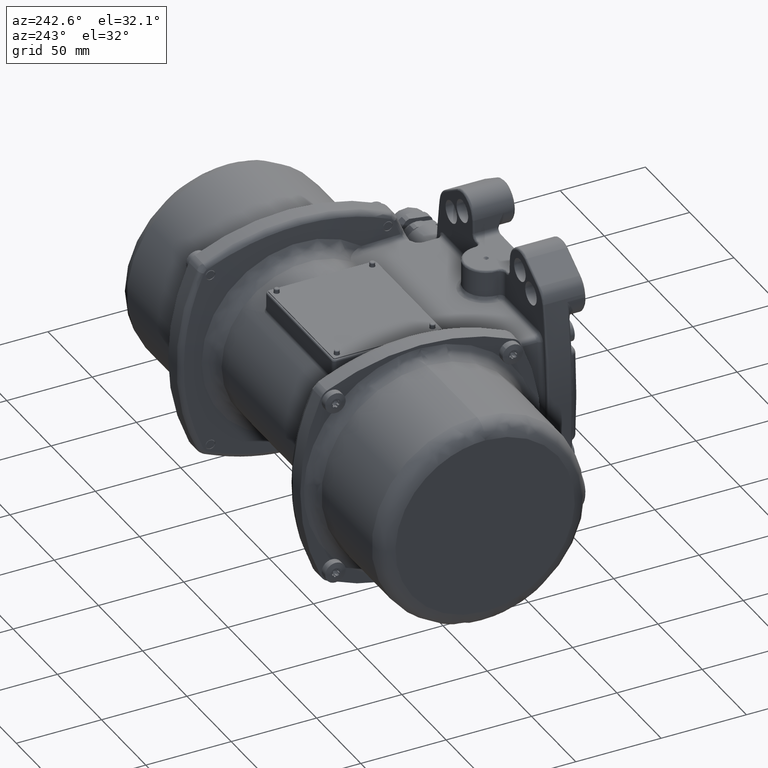
[diagram: clean part render]
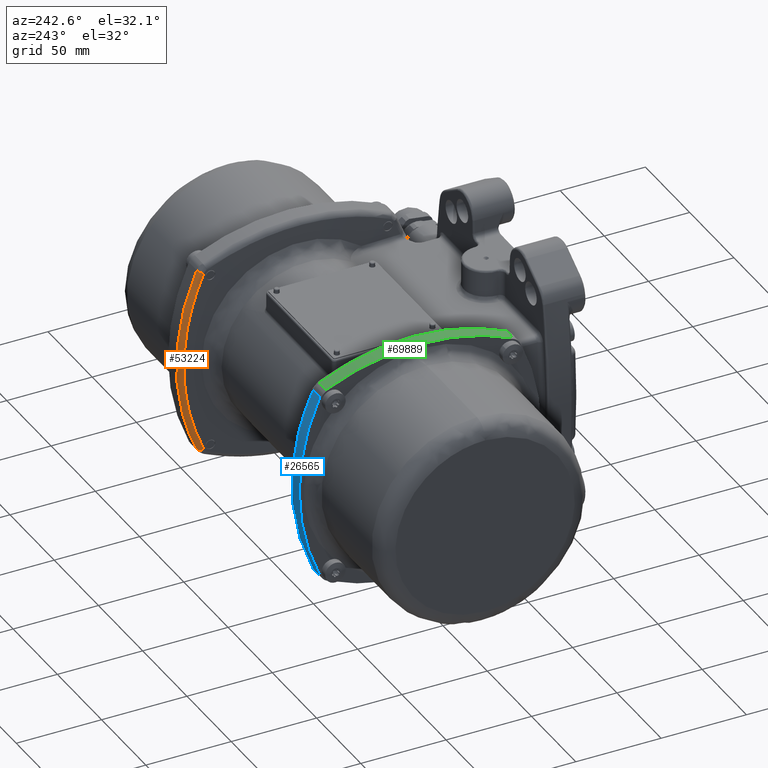
[diagram: same view with three faces highlighted in distinct colors, each labeled with its STEP entity id]
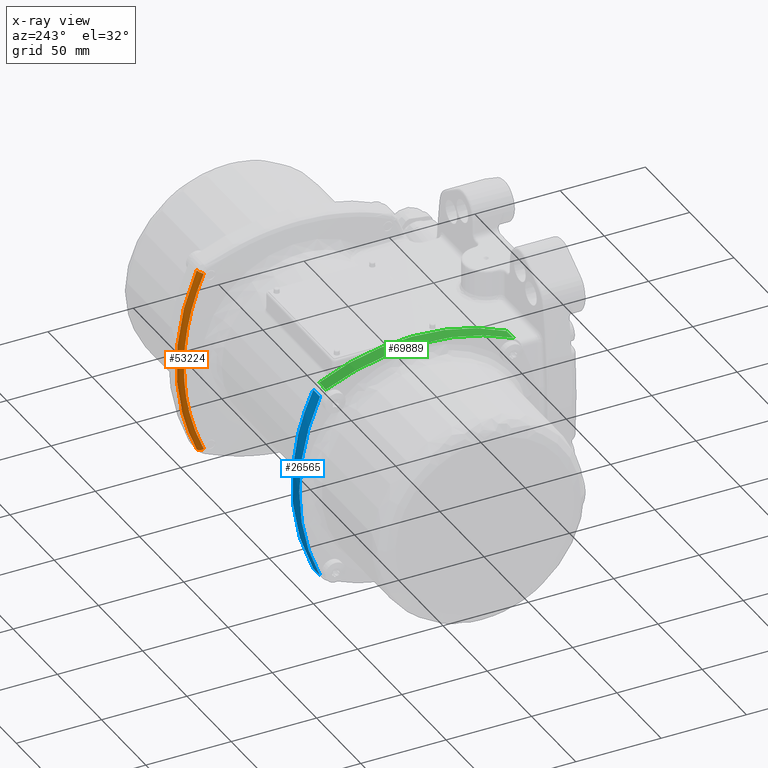
[diagram: x-ray of the same camera — body ghosted, the three highlighted faces saturated]
A machine part, auxiliary view with three faces highlighted in distinct colors.
The next image is the same camera in x-ray (body ghosted, the three faces saturated) — at least one of them is partly hidden behind the body in this view.
Their STEP definitions:

[orange] entity #53224 — the highlighted face is a freeform B-spline surface patch.
#507 = CARTESIAN_POINT ( 'NONE',  ( 65.44175855840559600, 68.37071234248568900, 23.55196588437800300 ) ) ;
#602 = CARTESIAN_POINT ( 'NONE',  ( 62.47540910049200100, 64.90561184000240800, -26.32266884053135000 ) ) ;
#1572 = CARTESIAN_POINT ( 'NONE',  ( 62.35123950651122000, 67.65188437586343200, 1.175435339197090000 ) ) ;
#1752 =( BOUNDED_SURFACE ( )  B_SPLINE_SURFACE ( 3, 2, ( 
 ( #25414, #111424, #7282 ),
 ( #63934, #4982, #82045 ),
 ( #88780, #54944, #95553 ),
 ( #118235, #97856, #43579 ),
 ( #109094, #138528, #106877 ),
 ( #16311, #57189, #124984 ),
 ( #507, #73021, #136292 ),
 ( #104671, #32228, #115996 ),
 ( #79795, #48049, #75262 ),
 ( #131741, #70701, #14062 ),
 ( #50377, #84238, #34469 ),
 ( #129538, #23105, #122771 ),
 ( #66160, #134067, #86551 ),
 ( #102350, #41254, #113676 ),
 ( #52648, #116102, #41348 ),
 ( #36888, #59521, #73116 ),
 ( #95651, #125090, #50471 ),
 ( #39135, #131836, #91169 ),
 ( #138621, #66250, #9600 ),
 ( #113768, #104766, #86649 ),
 ( #70795, #127312, #602 ),
 ( #55047, #136381, #25503 ),
 ( #77565, #18716, #97957 ),
 ( #111513, #43677, #88873 ),
 ( #11922, #45903, #11824 ),
 ( #122866, #27770, #61818 ) ),
 .UNSPECIFIED., .F., .F., .F. ) 
 B_SPLINE_SURFACE_WITH_KNOTS ( ( 4, 2, 2, 2, 2, 2, 2, 2, 2, 2, 2, 2, 4 ),
 ( 3, 3 ),
 ( -6.938893903907229900E-018, 0.01379262400805733900, 0.02758524801611470000, 0.03448156002014335400, 0.03792971602215770100, 0.04137787202417200100, 0.05517049603222939900, 0.06896312004028670700, 0.07585943204431540300, 0.07930758804632970200, 0.08275574404834400200, 0.09654836805640139300, 0.1103409920644586000 ),
 ( 0.0000000000000000000, 1.000000000000000000 ),
 .UNSPECIFIED. ) 
 GEOMETRIC_REPRESENTATION_ITEM ( )  RATIONAL_B_SPLINE_SURFACE ( (
 ( 1.000000000000000000, 0.7243922550684770400, 1.000000000000000000),
 ( 1.000000000000000000, 0.7245114531861609500, 1.000000000000000000),
 ( 1.000000000000000000, 0.7246327023817900100, 1.000000000000000000),
 ( 1.000000000000000000, 0.7248633070898790100, 1.000000000000000000),
 ( 1.000000000000000000, 0.7249726450147769800, 1.000000000000000000),
 ( 1.000000000000000000, 0.7251135887130870600, 1.000000000000000000),
 ( 1.000000000000000000, 0.7251567078725650300, 1.000000000000000000),
 ( 1.000000000000000000, 0.7252138234141319900, 1.000000000000000000),
 ( 1.000000000000000000, 0.7252316022405330700, 1.000000000000000000),
 ( 1.000000000000000000, 0.7252643640193930900, 1.000000000000000000),
 ( 1.000000000000000000, 0.7252793427281809500, 1.000000000000000000),
 ( 1.000000000000000000, 0.7253462632342520000, 1.000000000000000000),
 ( 1.000000000000000000, 0.7253742834435059600, 1.000000000000000000),
 ( 1.000000000000000000, 0.7253744581643599700, 1.000000000000000000),
 ( 1.000000000000000000, 0.7253466274368789400, 1.000000000000000000),
 ( 1.000000000000000000, 0.7252676218558329300, 1.000000000000000000),
 ( 1.000000000000000000, 0.7252351620701080700, 1.000000000000000000),
 ( 1.000000000000000000, 0.7251785084503981100, 1.000000000000000000),
 ( 1.000000000000000000, 0.7251583003771560100, 1.000000000000000000),
 ( 1.000000000000000000, 0.7251154795694559900, 1.000000000000000000),
 ( 1.000000000000000000, 0.7250928370710980600, 1.000000000000000000),
 ( 1.000000000000000000, 0.7249746617542759400, 1.000000000000000000),
 ( 1.000000000000000000, 0.7248646104742210200, 1.000000000000000000),
 ( 1.000000000000000000, 0.7246329991026849700, 1.000000000000000000),
 ( 1.000000000000000000, 0.7245114464358579600, 1.000000000000000000),
 ( 1.000000000000000000, 0.7243922550684750400, 1.000000000000000000) ) ) 
 REPRESENTATION_ITEM ( '' )  SURFACE ( )  );
#2911 = ORIENTED_EDGE ( 'NONE', *, *, #135402, .T. ) ;
#3932 = CARTESIAN_POINT ( 'NONE',  ( 62.48582423466920200, 64.67058392429707700, -27.38432010587094500 ) ) ;
#4982 = CARTESIAN_POINT ( 'NONE',  ( 62.92637025227075800, 60.31650563471004700, 50.66267622753727600 ) ) ;
#5331 = CARTESIAN_POINT ( 'NONE',  ( 62.41203955454130200, 66.31868662546205000, 18.42711283664303700 ) ) ;
#7055 = VERTEX_POINT ( 'NONE', #49802 ) ;
#7282 = CARTESIAN_POINT ( 'NONE',  ( 62.86347865239088900, 55.71609045198440700, 53.77719982089649900 ) ) ;
#7838 = B_SPLINE_CURVE_WITH_KNOTS ( 'NONE', 3,
 ( #30658, #89543, #118911, #21549, #39700, #130214, #87231, #42013, #60188, #12497, #53420, #71485, #10268, #44258, #105336, #37467, #123440, #134731, #26103, #57871, #62382, #114452, #94002, #98529, #85021, #23871 ),
 .UNSPECIFIED., .F., .F.,
 ( 4, 2, 2, 2, 2, 2, 2, 2, 2, 2, 2, 2, 4 ),
 ( 0.0000000000000000000, 0.1250000000000001700, 0.2500000000000004400, 0.3125000000000003900, 0.3437500000000005600, 0.3750000000000002200, 0.5000000000000008900, 0.6250000000000007800, 0.6875000000000011100, 0.7187500000000007800, 0.7500000000000004400, 0.8750000000000010000, 1.000000000000000000 ),
 .UNSPECIFIED. ) ;
#8340 = CARTESIAN_POINT ( 'NONE',  ( 62.46748001718588500, 65.08353406846276800, -25.45299657527857200 ) ) ;
#9568 = CARTESIAN_POINT ( 'NONE',  ( 62.48810728627344000, 64.61905932276084700, 27.61672199767612700 ) ) ;
#9600 = CARTESIAN_POINT ( 'NONE',  ( 62.44523304638850200, 65.58165817455399300, -22.89882350383505000 ) ) ;
#10268 = CARTESIAN_POINT ( 'NONE',  ( 65.34693035835859100, 70.49918772664669600, 4.721950623626369700 ) ) ;
#10643 = CARTESIAN_POINT ( 'NONE',  ( 62.38374816282325200, 66.94187486668391800, -13.46361574568767900 ) ) ;
#10783 = EDGE_CURVE ( 'NONE', #7055, #54323, #69546, .T. ) ;
#11824 = CARTESIAN_POINT ( 'NONE',  ( 62.78414685227539800, 57.68834390161169500, -49.55415236872429600 ) ) ;
#11922 = CARTESIAN_POINT ( 'NONE',  ( 65.78003541066131300, 60.33458158999379600, -50.61968942760020000 ) ) ;
#12497 = CARTESIAN_POINT ( 'NONE',  ( 65.39388363829060300, 69.45204342327809900, 16.51618227147285000 ) ) ;
#14062 = CARTESIAN_POINT ( 'NONE',  ( 62.39799503401939500, 66.62882520626161000, 16.17208352649490200 ) ) ;
#14512 = EDGE_CURVE ( 'NONE', #7055, #79807, #34604, .T. ) ;
#16311 = CARTESIAN_POINT ( 'NONE',  ( 65.46147877221790200, 67.92144646924110400, 25.87148223928279800 ) ) ;
#17458 = CARTESIAN_POINT ( 'NONE',  ( 62.70784905415251100, 59.52346832141901000, -44.96808300273809800 ) ) ;
#18255 = VERTEX_POINT ( 'NONE', #85818 ) ;
#18716 = CARTESIAN_POINT ( 'NONE',  ( 62.73081716011853400, 65.12658602574707300, -37.29123150517413900 ) ) ;
#21549 = CARTESIAN_POINT ( 'NONE',  ( 65.58239318808308800, 65.12053494636819600, 37.30833489235155300 ) ) ;
#22047 = CARTESIAN_POINT ( 'NONE',  ( 62.48619081759670700, 64.66231288568766900, -27.42176365622128000 ) ) ;
#23105 = CARTESIAN_POINT ( 'NONE',  ( 62.51137595868496500, 70.24376998184158100, 9.441984661610350200 ) ) ;
#23166 = CARTESIAN_POINT ( 'NONE',  ( 62.54623584251920200, 63.29692059050433500, 33.01721344424561300 ) ) ;
#23871 = CARTESIAN_POINT ( 'NONE',  ( 65.85936725665460800, 58.32209224431439800, -54.93591338252520000 ) ) ;
#24149 = CARTESIAN_POINT ( 'NONE',  ( 62.37415032092848600, 67.15257162754240000, 11.54593760213000100 ) ) ;
#25414 = CARTESIAN_POINT ( 'NONE',  ( 65.85936725665460800, 58.32209224431390000, 54.93591338252570500 ) ) ;
#25503 = CARTESIAN_POINT ( 'NONE',  ( 62.53119141571410500, 63.64683490313679900, -32.00917981858655300 ) ) ;
#26103 = CARTESIAN_POINT ( 'NONE',  ( 65.44112165064859700, 68.38459152220970300, -23.38674670910569700 ) ) ;
#27734 = CARTESIAN_POINT ( 'NONE',  ( 62.44536145047543800, 65.57916874102070900, 22.99940754444227800 ) ) ;
#27770 = CARTESIAN_POINT ( 'NONE',  ( 63.00474880506701700, 58.30152255820480900, -54.98002957728771600 ) ) ;
#30658 = CARTESIAN_POINT ( 'NONE',  ( 65.85936725665460800, 58.32209224431390000, 54.93591338252570500 ) ) ;
#32228 = CARTESIAN_POINT ( 'NONE',  ( 62.56799253229787200, 68.94763723386927300, 20.06516838201151000 ) ) ;
#32247 = AXIS2_PLACEMENT_3D ( 'NONE', #108306, #105990, #42682 ) ;
#32295 = CARTESIAN_POINT ( 'NONE',  ( 62.61461457495173700, 61.71729858067147500, 38.46195418074435000 ) ) ;
#34469 = CARTESIAN_POINT ( 'NONE',  ( 62.39148564578329800, 66.77202363034769000, 15.01406672763229900 ) ) ;
#34604 = B_SPLINE_CURVE_WITH_KNOTS ( 'NONE', 3,
 ( #114037, #100167, #125351, #32295, #57248, #23166, #120527, #64298, #77832, #53011, #91333, #131801, #70761, #82099, #9568, #127570, #27734, #106936, #5331, #45867, #125051, #84599, #64001, #59780, #130602, #24149, #78533, #96621, #35510, #114729, #121617, #1572, #135101, #74080, #60562, #80844, #105707, #98914, #67298, #108037, #37858, #139673, #10643, #114830, #65094, #49211, #69618, #117068, #8340, #53806, #71870, #128363, #85412, #3932, #22047, #101290, #119396, #17458, #58354, #137461 ),
 .UNSPECIFIED., .F., .F.,
 ( 4, 2, 2, 2, 1, 1, 1, 1, 2, 2, 2, 2, 1, 1, 2, 2, 2, 2, 1, 2, 2, 2, 2, 1, 2, 2, 2, 2, 1, 1, 1, 1, 2, 2, 2, 4 ),
 ( 0.0000000000000000000, 0.1250000000000008900, 0.1875000000000013300, 0.2187500000000014400, 0.2343750000000015000, 0.2421875000000016100, 0.2460937500000016700, 0.2480468750000016900, 0.2490234375000016900, 0.2500000000000016700, 0.3125000000000005600, 0.3437499999999999400, 0.3593749999999996700, 0.3671874999999994400, 0.3710937499999993300, 0.3749999999999992800, 0.4374999999999982800, 0.4687499999999978400, 0.4843749999999976100, 0.4921874999999975000, 0.4999999999999973900, 0.5624999999999964500, 0.5937499999999960000, 0.6093749999999957800, 0.6171874999999956700, 0.6249999999999956700, 0.6874999999999948900, 0.7187499999999944500, 0.7343749999999942300, 0.7421874999999941200, 0.7460937499999942300, 0.7480468749999942300, 0.7490234374999943400, 0.7499999999999944500, 0.8749999999999972200, 1.000000000000000000 ),
 .UNSPECIFIED. ) ;
#35510 = CARTESIAN_POINT ( 'NONE',  ( 62.35464402321186800, 67.57760446793726300, 4.633199066285123500 ) ) ;
#36888 = CARTESIAN_POINT ( 'NONE',  ( 65.39242825451590600, 69.48495579952890500, -16.38344724267105300 ) ) ;
#37467 = CARTESIAN_POINT ( 'NONE',  ( 65.39242825451590600, 69.48495579952890500, -16.38344724267105300 ) ) ;
#37858 = CARTESIAN_POINT ( 'NONE',  ( 62.37968462348385400, 67.03095387561506900, -12.59972647280534700 ) ) ;
#39135 = CARTESIAN_POINT ( 'NONE',  ( 65.43197451404850500, 68.59233224260809400, -22.22054677462309900 ) ) ;
#39700 = CARTESIAN_POINT ( 'NONE',  ( 65.52808104847129300, 66.38860892972741100, 32.77640303668150100 ) ) ;
#41254 = CARTESIAN_POINT ( 'NONE',  ( 62.49996420031501300, 70.50081004382083400, -4.681849936275873400 ) ) ;
#41348 = CARTESIAN_POINT ( 'NONE',  ( 62.36245356703089700, 67.40927359465230500, -9.171183281642559100 ) ) ;
#42013 = CARTESIAN_POINT ( 'NONE',  ( 65.41614663466489800, 68.95070104695000200, 20.04547189630324800 ) ) ;
#42682 = DIRECTION ( 'NONE',  ( 0.0000000000000000000, 0.9063237864947203400, 0.4225839490963569900 ) ) ;
#43579 = CARTESIAN_POINT ( 'NONE',  ( 62.58650458382479800, 62.38033461129539600, 36.52699195756334700 ) ) ;
#43677 = CARTESIAN_POINT ( 'NONE',  ( 62.85547543297595000, 62.08291516092772600, -46.26047473324340600 ) ) ;
#44258 = CARTESIAN_POINT ( 'NONE',  ( 65.34685721636789400, 70.50080840817980700, -4.677118824623470100 ) ) ;
#44472 = CARTESIAN_POINT ( 'NONE',  ( 65.85936725665460800, 55.60312088483020400, -53.66816153523620200 ) ) ;
#45867 = CARTESIAN_POINT ( 'NONE',  ( 62.40137547581905200, 66.55411601489390700, 16.71303936227016300 ) ) ;
#45903 = CARTESIAN_POINT ( 'NONE',  ( 62.92636985653079800, 60.31651581131061600, -50.66265442347170000 ) ) ;
#48049 = CARTESIAN_POINT ( 'NONE',  ( 62.56025626609744700, 69.12565091235957500, 18.89070760563517100 ) ) ;
#49211 = CARTESIAN_POINT ( 'NONE',  ( 62.43593833744495900, 65.78851497887367800, -21.73876768186151800 ) ) ;
#49802 = CARTESIAN_POINT ( 'NONE',  ( 62.86347865239088900, 55.71609045198440700, 53.77719982089649900 ) ) ;
#50377 = CARTESIAN_POINT ( 'NONE',  ( 65.38737425004690400, 69.59800416113000700, 15.33346264919550000 ) ) ;
#50471 = CARTESIAN_POINT ( 'NONE',  ( 62.41070742973079900, 66.34902937937829400, -18.32977102511895100 ) ) ;
#52648 = CARTESIAN_POINT ( 'NONE',  ( 65.35834217131079500, 70.24753145441829400, -9.366042180342551800 ) ) ;
#53011 = CARTESIAN_POINT ( 'NONE',  ( 62.49725786927030000, 64.41226174123626400, 28.53185742205819200 ) ) ;
#53224 = ADVANCED_FACE ( 'NONE', ( #120471 ), #1752, .T. ) ;
#53420 = CARTESIAN_POINT ( 'NONE',  ( 65.38737425004690400, 69.59800416113000700, 15.33346264919550000 ) ) ;
#53806 = CARTESIAN_POINT ( 'NONE',  ( 62.47685049019350600, 64.87282604819212400, -26.45419285478861900 ) ) ;
#54323 = VERTEX_POINT ( 'NONE', #129348 ) ;
#54944 = CARTESIAN_POINT ( 'NONE',  ( 62.85566004509389900, 62.07824381080781300, 46.27053550570661100 ) ) ;
#55047 = CARTESIAN_POINT ( 'NONE',  ( 65.52708001997970700, 66.41198520661988900, -32.69282714195784900 ) ) ;
#57185 = ORIENTED_EDGE ( 'NONE', *, *, #10783, .T. ) ;
#57189 = CARTESIAN_POINT ( 'NONE',  ( 62.61253842130511800, 67.91639870835381000, 25.89651889580578000 ) ) ;
#57248 = CARTESIAN_POINT ( 'NONE',  ( 62.58577850542798900, 62.38703760979775800, 36.28253258894685000 ) ) ;
#57871 = CARTESIAN_POINT ( 'NONE',  ( 65.46077614148040900, 67.93627696724549000, -25.71777562632059900 ) ) ;
#57903 = EDGE_CURVE ( 'NONE', #79807, #18255, #96172, .T. ) ;
#58354 = CARTESIAN_POINT ( 'NONE',  ( 62.78066742849065900, 57.77484522328256100, -49.36893317886375600 ) ) ;
#59521 = CARTESIAN_POINT ( 'NONE',  ( 62.54469686389775500, 69.48292415159993100, -16.39978476935939600 ) ) ;
#59780 = CARTESIAN_POINT ( 'NONE',  ( 62.38713467197824500, 66.86753269044372400, 14.14157402059558200 ) ) ;
#60188 = CARTESIAN_POINT ( 'NONE',  ( 65.40827078909620700, 69.12836999818279100, 18.87210140588730300 ) ) ;
#60562 = CARTESIAN_POINT ( 'NONE',  ( 62.35098687724217800, 67.65740068376602800, -2.275178718472781600 ) ) ;
#61818 = CARTESIAN_POINT ( 'NONE',  ( 62.86347865239088900, 55.71609045198479700, -53.77719982089610100 ) ) ;
#62382 = CARTESIAN_POINT ( 'NONE',  ( 65.47129770475528700, 67.69537544681298900, -26.88404778432109800 ) ) ;
#62580 = DIRECTION ( 'NONE',  ( 0.01704917898812790800, -0.4225225274426571700, -0.9061920543126055200 ) ) ;
#63934 = CARTESIAN_POINT ( 'NONE',  ( 65.78003581177559100, 60.33457141604100100, 50.61971124786870000 ) ) ;
#64001 = CARTESIAN_POINT ( 'NONE',  ( 62.38860674638974800, 66.83519386807846300, 14.42734339826272800 ) ) ;
#64298 = CARTESIAN_POINT ( 'NONE',  ( 62.51575791767974300, 63.99257515789039300, 30.29831015469347100 ) ) ;
#65094 = CARTESIAN_POINT ( 'NONE',  ( 62.41059790473654100, 66.35122969476796600, -18.31376115233696200 ) ) ;
#66160 = CARTESIAN_POINT ( 'NONE',  ( 65.34693035835859100, 70.49918772664669600, 4.721950623626369700 ) ) ;
#66250 = CARTESIAN_POINT ( 'NONE',  ( 62.59253145011653200, 68.38044573408028300, -23.40947003486242700 ) ) ;
#67298 = CARTESIAN_POINT ( 'NONE',  ( 62.37233599604862600, 67.19174343706059500, -10.87708696992641500 ) ) ;
#69546 = CIRCLE ( 'NONE', #32247, 2.999999999999996900 ) ;
#69618 = CARTESIAN_POINT ( 'NONE',  ( 62.44508124099573400, 65.58487876032907600, -22.88090495808830800 ) ) ;
#70701 = CARTESIAN_POINT ( 'NONE',  ( 62.54612641158311700, 69.44995417773904500, 16.53257438068180500 ) ) ;
#70761 = CARTESIAN_POINT ( 'NONE',  ( 62.48909563164338000, 64.59674412689838600, 27.71673787536393300 ) ) ;
#70795 = CARTESIAN_POINT ( 'NONE',  ( 65.47129770475528700, 67.69537544681298900, -26.88404778432109800 ) ) ;
#71485 = CARTESIAN_POINT ( 'NONE',  ( 65.35848858103709300, 70.24433192878549900, 9.432094972791350800 ) ) ;
#71870 = CARTESIAN_POINT ( 'NONE',  ( 62.48164992939737100, 64.76471590640643700, -26.95497582549007700 ) ) ;
#73021 = CARTESIAN_POINT ( 'NONE',  ( 62.59315645815711100, 68.36652359431003800, 23.57494343348572100 ) ) ;
#73116 = CARTESIAN_POINT ( 'NONE',  ( 62.39653965026020200, 66.66111186024301100, -16.04214011255984900 ) ) ;
#74080 = CARTESIAN_POINT ( 'NONE',  ( 62.35100747100674600, 67.65695664063315500, 0.3090496474075729000 ) ) ;
#75262 = CARTESIAN_POINT ( 'NONE',  ( 62.41238218483999800, 66.31128817342390400, 18.47874941406124800 ) ) ;
#77565 = CARTESIAN_POINT ( 'NONE',  ( 65.58170624406869800, 65.13686690468451000, -37.25648306648169900 ) ) ;
#77832 = CARTESIAN_POINT ( 'NONE',  ( 62.50703207738278200, 64.19088337448569300, 29.48292931253399000 ) ) ;
#78533 = CARTESIAN_POINT ( 'NONE',  ( 62.36548698521042400, 67.34130216357759500, 9.241214590035378200 ) ) ;
#79795 = CARTESIAN_POINT ( 'NONE',  ( 65.40827078909620700, 69.12836999818279100, 18.87210140588730300 ) ) ;
#79807 = VERTEX_POINT ( 'NONE', #138806 ) ;
#80844 = CARTESIAN_POINT ( 'NONE',  ( 62.35382427363210700, 67.59547844259906000, -4.568164525610015400 ) ) ;
#82045 = CARTESIAN_POINT ( 'NONE',  ( 62.78414725177449900, 57.68833396939109500, 49.55417363550470400 ) ) ;
#82099 = CARTESIAN_POINT ( 'NONE',  ( 62.48842405325380900, 64.61190789385864300, 27.64881414794835700 ) ) ;
#84238 = CARTESIAN_POINT ( 'NONE',  ( 62.53973459143050900, 69.59620264079184400, 15.34872182912866400 ) ) ;
#84599 = CARTESIAN_POINT ( 'NONE',  ( 62.39084756572586300, 66.78594947232628000, 14.85597755881369300 ) ) ;
#85021 = CARTESIAN_POINT ( 'NONE',  ( 65.78003541066131300, 60.33458158999379600, -50.61968942760020000 ) ) ;
#85412 = CARTESIAN_POINT ( 'NONE',  ( 62.48512500493767900, 64.68635785708048000, -27.31275672535791100 ) ) ;
#85818 = CARTESIAN_POINT ( 'NONE',  ( 65.85936725665460800, 58.32209224431439800, -54.93591338252520000 ) ) ;
#86551 = CARTESIAN_POINT ( 'NONE',  ( 62.35104175411139900, 67.65621086731120200, 4.623712524940679600 ) ) ;
#86649 = CARTESIAN_POINT ( 'NONE',  ( 62.46488753721300200, 65.14190439369919300, -25.18091252068265000 ) ) ;
#87231 = CARTESIAN_POINT ( 'NONE',  ( 65.44175855840559600, 68.37071234248568900, 23.55196588437800300 ) ) ;
#88780 = CARTESIAN_POINT ( 'NONE',  ( 65.70837427928539400, 62.09350422538869900, 46.22996120427990300 ) ) ;
#88873 = CARTESIAN_POINT ( 'NONE',  ( 62.71229864230939900, 59.41710807525839800, -45.24871006368439900 ) ) ;
#89543 = CARTESIAN_POINT ( 'NONE',  ( 65.78003581177559100, 60.33457141604100100, 50.61971124786870000 ) ) ;
#91169 = CARTESIAN_POINT ( 'NONE',  ( 62.43608590977770200, 65.78544079370550400, -21.75707802750314800 ) ) ;
#91333 = CARTESIAN_POINT ( 'NONE',  ( 62.49247224993918300, 64.52046931250799800, 28.05636253436731000 ) ) ;
#94002 = CARTESIAN_POINT ( 'NONE',  ( 65.58170624406869800, 65.13686690468451000, -37.25648306648169900 ) ) ;
#95553 = CARTESIAN_POINT ( 'NONE',  ( 62.71248567501630300, 59.41253437994199500, 45.25855566192090200 ) ) ;
#95651 = CARTESIAN_POINT ( 'NONE',  ( 65.40659603398039200, 69.16684873773840500, -18.71991317168910000 ) ) ;
#96172 = CIRCLE ( 'NONE', #115265, 3.000000000000000900 ) ;
#96621 = CARTESIAN_POINT ( 'NONE',  ( 62.35681445459170600, 67.53031400738196100, 5.785089801474705400 ) ) ;
#97856 = CARTESIAN_POINT ( 'NONE',  ( 62.73149376736028400, 65.11022855952971600, 37.34311271951263900 ) ) ;
#97957 = CARTESIAN_POINT ( 'NONE',  ( 62.58581763983369900, 62.39634846411109900, -36.47624191172224800 ) ) ;
#98529 = CARTESIAN_POINT ( 'NONE',  ( 65.70818724660190900, 62.09817068518350400, -46.21989840226899600 ) ) ;
#98914 = CARTESIAN_POINT ( 'NONE',  ( 62.36592439581851000, 67.33177332101807600, -9.155551708132879400 ) ) ;
#100167 = CARTESIAN_POINT ( 'NONE',  ( 62.78106357083133600, 57.76499680062224200, 49.39002091291288800 ) ) ;
#101290 = CARTESIAN_POINT ( 'NONE',  ( 62.52936532938647900, 63.68804640662242600, -31.82367489197038400 ) ) ;
#102350 = CARTESIAN_POINT ( 'NONE',  ( 65.34685721636789400, 70.50080840817980700, -4.677118824623470100 ) ) ;
#104671 = CARTESIAN_POINT ( 'NONE',  ( 65.41614663466489800, 68.95070104695000200, 20.04547189630324800 ) ) ;
#104766 = CARTESIAN_POINT ( 'NONE',  ( 62.61184949097039300, 67.93128937390042700, -25.74254160287130600 ) ) ;
#105336 = CARTESIAN_POINT ( 'NONE',  ( 65.35834217131079500, 70.24753145441829400, -9.366042180342551800 ) ) ;
#105707 = CARTESIAN_POINT ( 'NONE',  ( 62.36236392115469600, 67.40937729918533700, -8.008587409643716600 ) ) ;
#105990 = DIRECTION ( 'NONE',  ( -0.01704917898812799400, 0.4225225274426688800, -0.9061920543125997500 ) ) ;
#106877 = CARTESIAN_POINT ( 'NONE',  ( 62.53219244418529900, 63.62391022836930400, 32.09098690014570100 ) ) ;
#106936 = CARTESIAN_POINT ( 'NONE',  ( 62.41984670502395700, 66.14589258907167800, 19.56983870147031700 ) ) ;
#108037 = CARTESIAN_POINT ( 'NONE',  ( 62.37580951822227600, 67.11581942526166200, -11.73812622356686900 ) ) ;
#108306 = CARTESIAN_POINT ( 'NONE',  ( 65.85936725665460800, 55.60312088482980600, 53.66816153523659900 ) ) ;
#109094 = CARTESIAN_POINT ( 'NONE',  ( 65.52808104847129300, 66.38860892972741100, 32.77640303668150100 ) ) ;
#111424 = CARTESIAN_POINT ( 'NONE',  ( 63.00474880506698100, 58.30152255820436800, 54.98002957728803600 ) ) ;
#111513 = CARTESIAN_POINT ( 'NONE',  ( 65.70818724660190900, 62.09817068518350400, -46.21989840226899600 ) ) ;
#113676 = CARTESIAN_POINT ( 'NONE',  ( 62.35096861208769800, 67.65780107764410900, -4.579813431724471000 ) ) ;
#113768 = CARTESIAN_POINT ( 'NONE',  ( 65.46077614148040900, 67.93627696724549000, -25.71777562632059900 ) ) ;
#114037 = CARTESIAN_POINT ( 'NONE',  ( 62.86347865239088900, 55.71609045198440700, 53.77719982089649900 ) ) ;
#114452 = CARTESIAN_POINT ( 'NONE',  ( 65.52708001997970700, 66.41198520661988900, -32.69282714195784900 ) ) ;
#114729 = CARTESIAN_POINT ( 'NONE',  ( 62.35246899438172400, 67.62503956529734200, 2.904694792158030800 ) ) ;
#114830 = CARTESIAN_POINT ( 'NONE',  ( 62.39648865352281600, 66.66222889674332900, -16.03233619487895100 ) ) ;
#115265 = AXIS2_PLACEMENT_3D ( 'NONE', #44472, #62580, #123644 ) ;
#115996 = CARTESIAN_POINT ( 'NONE',  ( 62.42025803039609900, 66.13699246671319500, 19.62756598462315000 ) ) ;
#116102 = CARTESIAN_POINT ( 'NONE',  ( 62.51123235202963000, 70.24697745887411300, -9.375856042141485600 ) ) ;
#117068 = CARTESIAN_POINT ( 'NONE',  ( 62.45983973529387600, 65.25476113414346500, -24.59541604523541000 ) ) ;
#118235 = CARTESIAN_POINT ( 'NONE',  ( 65.58239318808308800, 65.12053494636819600, 37.30833489235155300 ) ) ;
#118911 = CARTESIAN_POINT ( 'NONE',  ( 65.70837427928539400, 62.09350422538869900, 46.22996120427990300 ) ) ;
#119396 = CARTESIAN_POINT ( 'NONE',  ( 62.58219800460042100, 62.47981266271347800, -36.19556584036541800 ) ) ;
#120471 = FACE_OUTER_BOUND ( 'NONE', #122859, .T. ) ;
#120527 = CARTESIAN_POINT ( 'NONE',  ( 62.53367352844573200, 63.58441507234353900, 31.92939301401994000 ) ) ;
#121617 = CARTESIAN_POINT ( 'NONE',  ( 62.35165163452653300, 67.64287876535318800, 2.040275278968354500 ) ) ;
#122771 = CARTESIAN_POINT ( 'NONE',  ( 62.36259997677299800, 67.40613376480189300, 9.235862210688589300 ) ) ;
#122859 = EDGE_LOOP ( 'NONE', ( #57185, #2911, #136007, #126750 ) ) ;
#122866 = CARTESIAN_POINT ( 'NONE',  ( 65.85936725665460800, 58.32209224431439800, -54.93591338252520000 ) ) ;
#123440 = CARTESIAN_POINT ( 'NONE',  ( 65.40659603398039200, 69.16684873773840500, -18.71991317168910000 ) ) ;
#123644 = DIRECTION ( 'NONE',  ( 0.0000000000000000000, 0.9063237864947261100, -0.4225839490963448900 ) ) ;
#124984 = CARTESIAN_POINT ( 'NONE',  ( 62.46559016796530300, 65.12734561908290200, 25.33142129960015200 ) ) ;
#125051 = CARTESIAN_POINT ( 'NONE',  ( 62.39630509820836600, 66.66588772443012100, 15.85600533098783100 ) ) ;
#125090 = CARTESIAN_POINT ( 'NONE',  ( 62.55861019487599600, 69.16418420945098000, -18.73849149024026400 ) ) ;
#125351 = CARTESIAN_POINT ( 'NONE',  ( 62.70854566627659200, 59.50674415795787600, 45.01014455685513100 ) ) ;
#126750 = ORIENTED_EDGE ( 'NONE', *, *, #14512, .F. ) ;
#127312 = CARTESIAN_POINT ( 'NONE',  ( 62.62219319842913700, 67.68993818600360200, -26.90981765194822400 ) ) ;
#127570 = CARTESIAN_POINT ( 'NONE',  ( 62.46516233944780800, 65.13699493719505500, 25.28770576530590800 ) ) ;
#128363 = CARTESIAN_POINT ( 'NONE',  ( 62.48407819967433600, 64.70996921298268500, -27.20541515792263000 ) ) ;
#129348 = CARTESIAN_POINT ( 'NONE',  ( 65.85936725665460800, 58.32209224431390000, 54.93591338252570500 ) ) ;
#129538 = CARTESIAN_POINT ( 'NONE',  ( 65.35848858103709300, 70.24433192878549900, 9.432094972791350800 ) ) ;
#130214 = CARTESIAN_POINT ( 'NONE',  ( 65.46147877221790200, 67.92144646924110400, 25.87148223928279800 ) ) ;
#130602 = CARTESIAN_POINT ( 'NONE',  ( 62.38641686680784900, 66.88329582229718500, 14.00014912948513100 ) ) ;
#131741 = CARTESIAN_POINT ( 'NONE',  ( 65.39388363829060300, 69.45204342327809900, 16.51618227147285000 ) ) ;
#131801 = CARTESIAN_POINT ( 'NONE',  ( 62.49010481145490600, 64.57395436900751000, 27.81862403279392000 ) ) ;
#131836 = CARTESIAN_POINT ( 'NONE',  ( 62.58354300049428800, 68.58858257421403000, -22.24222266401502100 ) ) ;
#134067 = CARTESIAN_POINT ( 'NONE',  ( 62.50003597085996900, 70.49918608298965200, 4.726728223173564600 ) ) ;
#134731 = CARTESIAN_POINT ( 'NONE',  ( 65.43197451404850500, 68.59233224260809400, -22.22054677462309900 ) ) ;
#135101 = CARTESIAN_POINT ( 'NONE',  ( 62.35105480602097600, 67.65592128483658000, 0.5987631298018724100 ) ) ;
#135402 = EDGE_CURVE ( 'NONE', #54323, #18255, #7838, .T. ) ;
#136007 = ORIENTED_EDGE ( 'NONE', *, *, #57903, .F. ) ;
#136292 = CARTESIAN_POINT ( 'NONE',  ( 62.44586995415210100, 65.56803762306429900, 23.06060330509674800 ) ) ;
#136381 = CARTESIAN_POINT ( 'NONE',  ( 62.67705209599858300, 66.40406582379215200, -32.72402979755094800 ) ) ;
#137461 = CARTESIAN_POINT ( 'NONE',  ( 62.86347865239088900, 55.71609045198479700, -53.77719982089610100 ) ) ;
#138528 = CARTESIAN_POINT ( 'NONE',  ( 62.67803720273087700, 66.38064972865920800, 32.80765932204918300 ) ) ;
#138621 = CARTESIAN_POINT ( 'NONE',  ( 65.44112165064859700, 68.38459152220970300, -23.38674670910569700 ) ) ;
#138806 = CARTESIAN_POINT ( 'NONE',  ( 62.86347865239088900, 55.71609045198479700, -53.77719982089610100 ) ) ;
#139673 = CARTESIAN_POINT ( 'NONE',  ( 62.38235726767776900, 66.97237929898102500, -13.17426781334539500 ) ) ;

[blue] entity #26565 — the highlighted cylindrical surface (partial cylindrical patch) has radius 130 mm, axis along (1, 0, 0).
#1552 = CARTESIAN_POINT ( 'NONE',  ( -65.85936725665440900, 58.32209224431430500, -54.93591338252520000 ) ) ;
#6163 = FACE_OUTER_BOUND ( 'NONE', #95516, .T. ) ;
#6501 = CARTESIAN_POINT ( 'NONE',  ( -73.50000000000000000, 58.32209224431390000, 54.93591338252559800 ) ) ;
#10914 = VERTEX_POINT ( 'NONE', #6501 ) ;
#15976 = CARTESIAN_POINT ( 'NONE',  ( -84.50000000000000000, 58.32209224431390000, 54.93591338252559800 ) ) ;
#21917 = CARTESIAN_POINT ( 'NONE',  ( -65.40827078910410800, 69.12836999818350100, -18.87210140588230100 ) ) ;
#24128 = CARTESIAN_POINT ( 'NONE',  ( -65.38737425004670500, 69.59800416113000700, -15.33346264919569900 ) ) ;
#26460 = CARTESIAN_POINT ( 'NONE',  ( -65.41614663466469900, 68.95070104694930500, -20.04547189630795100 ) ) ;
#26565 = ADVANCED_FACE ( 'NONE', ( #6163 ), #121662, .T. ) ;
#27115 = LINE ( 'NONE', #126776, #116915 ) ;
#27331 = LINE ( 'NONE', #15976, #118368 ) ;
#28703 = CARTESIAN_POINT ( 'NONE',  ( -65.70818724656959400, 62.09817068518490400, 46.21989840226429900 ) ) ;
#29816 = CARTESIAN_POINT ( 'NONE',  ( -73.50000000000000000, -59.50000000000000000, -2.307087775687735300E-013 ) ) ;
#30936 = CARTESIAN_POINT ( 'NONE',  ( -65.78003581177770800, 60.33457141602850300, -50.61971124789590000 ) ) ;
#32196 = AXIS2_PLACEMENT_3D ( 'NONE', #42445, #60611, #139718 ) ;
#32260 = EDGE_CURVE ( 'NONE', #10914, #68657, #27331, .T. ) ;
#32773 = EDGE_CURVE ( 'NONE', #86816, #139005, #27115, .T. ) ;
#33259 = CARTESIAN_POINT ( 'NONE',  ( -65.46147877223370400, 67.92144646924380400, -25.87148223927090000 ) ) ;
#37732 = CARTESIAN_POINT ( 'NONE',  ( -65.52708001997950800, 66.41198520662298700, 32.69282714194294900 ) ) ;
#37903 = CARTESIAN_POINT ( 'NONE',  ( -65.85936725665440900, 58.32209224431430500, -54.93591338252520000 ) ) ;
#42285 = CARTESIAN_POINT ( 'NONE',  ( -65.40659603398019300, 69.16684873773471100, 18.71991317171160000 ) ) ;
#42445 = CARTESIAN_POINT ( 'NONE',  ( -84.50000000000000000, -59.50000000000000000, -2.307851054017165100E-013 ) ) ;
#42718 = ORIENTED_EDGE ( 'NONE', *, *, #67916, .F. ) ;
#51662 = B_SPLINE_CURVE_WITH_KNOTS ( 'NONE', 3,
 ( #1552, #30936, #116951, #62750, #83066, #33259, #87589, #26460, #21917, #126038, #24128, #101157, #130581, #119279, #103387, #80826, #42285, #53683, #123797, #58232, #128241, #37732, #85287, #28703, #80730, #137335 ),
 .UNSPECIFIED., .F., .F.,
 ( 4, 2, 2, 2, 2, 2, 2, 2, 2, 2, 2, 2, 4 ),
 ( 0.0000000000000000000, 0.1250000000000001400, 0.2500000000000004400, 0.3125000000000003900, 0.3437500000000005000, 0.3750000000000002200, 0.5000000000000008900, 0.6250000000000007800, 0.6875000000000010000, 0.7187500000000007800, 0.7500000000000004400, 0.8750000000000010000, 1.000000000000000000 ),
 .UNSPECIFIED. ) ;
#53683 = CARTESIAN_POINT ( 'NONE',  ( -65.43197451404830600, 68.59233224260980000, 22.22054677461265000 ) ) ;
#58232 = CARTESIAN_POINT ( 'NONE',  ( -65.46077614148019600, 67.93627696724499300, 25.71777562632305000 ) ) ;
#60611 = DIRECTION ( 'NONE',  ( 1.000000000000000000, 8.326672684688669100E-017, 6.938893903907229900E-018 ) ) ;
#62234 = CARTESIAN_POINT ( 'NONE',  ( -73.50000000000000000, 58.32209224431430500, -54.93591338252530000 ) ) ;
#62750 = CARTESIAN_POINT ( 'NONE',  ( -65.58239318811490600, 65.12053494635550500, -37.30833489238945300 ) ) ;
#67916 = EDGE_CURVE ( 'NONE', #86816, #68657, #51662, .T. ) ;
#68136 = DIRECTION ( 'NONE',  ( 1.000000000000000000, 8.326672684688669100E-017, 6.938893903907229900E-018 ) ) ;
#68657 = VERTEX_POINT ( 'NONE', #78521 ) ;
#75096 = DIRECTION ( 'NONE',  ( 0.0000000000000000000, -5.337610695313252700E-017, 1.000000000000000000 ) ) ;
#77900 = ORIENTED_EDGE ( 'NONE', *, *, #32260, .T. ) ;
#78521 = CARTESIAN_POINT ( 'NONE',  ( -65.85936725665440900, 58.32209224431390000, 54.93591338252570500 ) ) ;
#80730 = CARTESIAN_POINT ( 'NONE',  ( -65.78003541075700900, 60.33458158999219700, 50.61968942760330500 ) ) ;
#80826 = CARTESIAN_POINT ( 'NONE',  ( -65.39242825453160900, 69.48495579952950200, 16.38344724266565000 ) ) ;
#83066 = CARTESIAN_POINT ( 'NONE',  ( -65.52808104843920500, 66.38860892972260800, -32.77640303670385400 ) ) ;
#85287 = CARTESIAN_POINT ( 'NONE',  ( -65.58170624410060200, 65.13686690468250600, 37.25648306648734800 ) ) ;
#86816 = VERTEX_POINT ( 'NONE', #37903 ) ;
#87589 = CARTESIAN_POINT ( 'NONE',  ( -65.44175855840529700, 68.37071234248759300, -23.55196588436710300 ) ) ;
#95516 = EDGE_LOOP ( 'NONE', ( #124332, #105550, #77900, #42718 ) ) ;
#101157 = CARTESIAN_POINT ( 'NONE',  ( -65.35848858103690900, 70.24433192878589700, -9.432094972787821200 ) ) ;
#103387 = CARTESIAN_POINT ( 'NONE',  ( -65.35834217127869300, 70.24753145441698600, 9.366042180354901000 ) ) ;
#105550 = ORIENTED_EDGE ( 'NONE', *, *, #129636, .T. ) ;
#116915 = VECTOR ( 'NONE', #133538, 1000.000000000000000 ) ;
#116951 = CARTESIAN_POINT ( 'NONE',  ( -65.70837427925330600, 62.09350422540210000, -46.22996120424100800 ) ) ;
#117726 = AXIS2_PLACEMENT_3D ( 'NONE', #29816, #131586, #75096 ) ;
#118368 = VECTOR ( 'NONE', #68136, 1000.000000000000000 ) ;
#119279 = CARTESIAN_POINT ( 'NONE',  ( -65.34685721636769500, 70.50080840817970800, 4.677118824629420000 ) ) ;
#121662 = CYLINDRICAL_SURFACE ( 'NONE', #32196, 130.0000000000000000 ) ;
#123797 = CARTESIAN_POINT ( 'NONE',  ( -65.44112165064839800, 68.38459152220988800, 23.38674670910424800 ) ) ;
#124332 = ORIENTED_EDGE ( 'NONE', *, *, #32773, .T. ) ;
#126038 = CARTESIAN_POINT ( 'NONE',  ( -65.39388363828229000, 69.45204342327760100, -16.51618227147674700 ) ) ;
#126776 = CARTESIAN_POINT ( 'NONE',  ( -84.50000000000000000, 58.32209224431430500, -54.93591338252530000 ) ) ;
#128241 = CARTESIAN_POINT ( 'NONE',  ( -65.47129770475510200, 67.69537544681199400, 26.88404778432545000 ) ) ;
#129636 = EDGE_CURVE ( 'NONE', #139005, #10914, #132360, .T. ) ;
#130581 = CARTESIAN_POINT ( 'NONE',  ( -65.34693035835839200, 70.49918772664679500, -4.721950623631260100 ) ) ;
#131586 = DIRECTION ( 'NONE',  ( 1.000000000000000000, 8.326672684688669100E-017, 6.938893903907229900E-018 ) ) ;
#132360 = CIRCLE ( 'NONE', #117726, 130.0000000000000000 ) ;
#133538 = DIRECTION ( 'NONE',  ( -1.000000000000000000, -8.326672684688669100E-017, -6.938893903907229900E-018 ) ) ;
#137335 = CARTESIAN_POINT ( 'NONE',  ( -65.85936725665440900, 58.32209224431390000, 54.93591338252570500 ) ) ;
#139005 = VERTEX_POINT ( 'NONE', #62234 ) ;
#139718 = DIRECTION ( 'NONE',  ( 0.0000000000000000000, -5.337610695313252700E-017, 1.000000000000000000 ) ) ;

[green] entity #69889 — the highlighted cylindrical surface (partial cylindrical patch) has radius 130 mm, axis along (1, 0, 0).
#141 = ORIENTED_EDGE ( 'NONE', *, *, #14398, .T. ) ;
#468 = VERTEX_POINT ( 'NONE', #19674 ) ;
#1768 = CARTESIAN_POINT ( 'NONE',  ( -65.78003581177789300, 50.61971124786820300, 60.33457141604139900 ) ) ;
#4420 = VECTOR ( 'NONE', #139294, 1000.000000000000000 ) ;
#6302 = CARTESIAN_POINT ( 'NONE',  ( -65.34689370019687300, 0.007471939681976585800, 70.50000000189264400 ) ) ;
#11183 = AXIS2_PLACEMENT_3D ( 'NONE', #59141, #109108, #43507 ) ;
#11697 = CARTESIAN_POINT ( 'NONE',  ( -65.34689370017591200, 4.027687692025084700E-012, 70.50000000226398800 ) ) ;
#11794 = CARTESIAN_POINT ( 'NONE',  ( -65.44112165049202200, -23.38674670910744200, 68.38459152220926300 ) ) ;
#13082 = CARTESIAN_POINT ( 'NONE',  ( -65.58239318808300300, 37.30833489235109800, 65.12053494636850800 ) ) ;
#14398 = EDGE_CURVE ( 'NONE', #34665, #468, #117808, .T. ) ;
#15185 = CARTESIAN_POINT ( 'NONE',  ( -65.85936725662840300, -54.93591338252609500, 58.32209224431370100 ) ) ;
#15426 = VECTOR ( 'NONE', #107149, 1000.000000000000000 ) ;
#17545 = CARTESIAN_POINT ( 'NONE',  ( -65.44175855842141200, 23.55196588437630100, 68.37071234248610100 ) ) ;
#18199 = ORIENTED_EDGE ( 'NONE', *, *, #137463, .F. ) ;
#19674 = CARTESIAN_POINT ( 'NONE',  ( -73.50000000000000000, -54.93591338252570500, 58.32209224431390000 ) ) ;
#24730 = EDGE_LOOP ( 'NONE', ( #75726, #44963, #18199, #87474, #141 ) ) ;
#26677 = CARTESIAN_POINT ( 'NONE',  ( -65.52808104843920500, 32.77640303667424600, 66.38860892972910200 ) ) ;
#33480 = CARTESIAN_POINT ( 'NONE',  ( -65.34689372921724300, 0.01494390617910821400, 70.49999935580905200 ) ) ;
#34665 = VERTEX_POINT ( 'NONE', #67465 ) ;
#36405 = B_SPLINE_CURVE_WITH_KNOTS ( 'NONE', 3,
 ( #123994, #1768, #51637, #13082, #26677, #114926, #17545, #67483, #40275, #119493, #92341, #83279, #94582, #33480, #6302, #85600 ),
 .UNSPECIFIED., .F., .F.,
 ( 4, 2, 2, 2, 2, 2, 2, 4 ),
 ( 0.0000000000000000000, 0.2499006680324610300, 0.4998013360649223900, 0.6247516700811526200, 0.6872268370892681300, 0.7497020040973837500, 0.9996026721298447700, 1.000000000000000000 ),
 .UNSPECIFIED. ) ;
#36958 = CARTESIAN_POINT ( 'NONE',  ( -65.52708001979087300, -32.69282714194466200, 66.41198520662257500 ) ) ;
#39594 = LINE ( 'NONE', #91774, #4420 ) ;
#40275 = CARTESIAN_POINT ( 'NONE',  ( -65.40827078910410800, 18.87210140588770100, 69.12836999818279100 ) ) ;
#41693 = VERTEX_POINT ( 'NONE', #59578 ) ;
#43507 = DIRECTION ( 'NONE',  ( 0.0000000000000000000, -6.205806994273272300E-017, 1.000000000000000000 ) ) ;
#44963 = ORIENTED_EDGE ( 'NONE', *, *, #76265, .F. ) ;
#48297 = CARTESIAN_POINT ( 'NONE',  ( -65.78003541060016300, -50.61968942762286600, 60.33458158998310200 ) ) ;
#50123 = CARTESIAN_POINT ( 'NONE',  ( -65.34689370017591200, 4.027687692025084700E-012, 70.50000000226398800 ) ) ;
#51637 = CARTESIAN_POINT ( 'NONE',  ( -65.70837427928520900, 46.22996120427940500, 62.09350422538900500 ) ) ;
#59141 = CARTESIAN_POINT ( 'NONE',  ( -73.50000000000000000, 2.334947434711920300E-013, -59.50000000000000000 ) ) ;
#59578 = CARTESIAN_POINT ( 'NONE',  ( -65.85936725665440900, 54.93591338252530000, 58.32209224431430500 ) ) ;
#59680 = CYLINDRICAL_SURFACE ( 'NONE', #105910, 130.0000000000000000 ) ;
#66424 = CARTESIAN_POINT ( 'NONE',  ( -84.50000000000000000, -54.93591338252570500, 58.32209224431390000 ) ) ;
#67465 = CARTESIAN_POINT ( 'NONE',  ( -73.50000000000000000, 54.93591338252530000, 58.32209224431430500 ) ) ;
#67483 = CARTESIAN_POINT ( 'NONE',  ( -65.41614663465669800, 20.04547189630345000, 68.95070104695000200 ) ) ;
#69889 = ADVANCED_FACE ( 'NONE', ( #125556 ), #59680, .T. ) ;
#75419 = CARTESIAN_POINT ( 'NONE',  ( -65.58170624394414000, -37.25648306651335400, 65.13686690467376600 ) ) ;
#75726 = ORIENTED_EDGE ( 'NONE', *, *, #109122, .F. ) ;
#76265 = EDGE_CURVE ( 'NONE', #80647, #106227, #82417, .T. ) ;
#77725 = CARTESIAN_POINT ( 'NONE',  ( -84.50000000000000000, 2.325788094758765300E-013, -59.50000000000000000 ) ) ;
#80647 = VERTEX_POINT ( 'NONE', #50123 ) ;
#82417 = B_SPLINE_CURVE_WITH_KNOTS ( 'NONE', 3,
 ( #11697, #88640, #138582, #124944, #104640, #122744, #11794, #104734, #136448, #36958, #75419, #131908, #48297, #134216 ),
 .UNSPECIFIED., .F., .F.,
 ( 4, 2, 2, 2, 2, 2, 4 ),
 ( 0.0000000000000000000, 0.2497017671049008000, 0.3747514725874175900, 0.4372763253286768800, 0.4998011780699346300, 0.7499005890349661500, 1.000000000000000000 ),
 .UNSPECIFIED. ) ;
#83279 = CARTESIAN_POINT ( 'NONE',  ( -65.35848858103690900, 9.432094972783881200, 70.24433192878630900 ) ) ;
#85600 = CARTESIAN_POINT ( 'NONE',  ( -65.34689370017591200, 4.027687692025084700E-012, 70.50000000226398800 ) ) ;
#87474 = ORIENTED_EDGE ( 'NONE', *, *, #135374, .T. ) ;
#88640 = CARTESIAN_POINT ( 'NONE',  ( -65.34689376544336900, -4.692029041388187800, 70.50000237134476300 ) ) ;
#91774 = CARTESIAN_POINT ( 'NONE',  ( -84.50000000000000000, 54.93591338252530000, 58.32209224431430500 ) ) ;
#92341 = CARTESIAN_POINT ( 'NONE',  ( -65.38737425004670500, 15.33346264919674900, 69.59800416112990700 ) ) ;
#94582 = CARTESIAN_POINT ( 'NONE',  ( -65.34693035839029600, 4.721950623623060400, 70.49918772664679500 ) ) ;
#100675 = DIRECTION ( 'NONE',  ( 0.0000000000000000000, -6.205806994273272300E-017, 1.000000000000000000 ) ) ;
#104640 = CARTESIAN_POINT ( 'NONE',  ( -65.40659603383994600, -18.71991317171137200, 69.16684873773478200 ) ) ;
#104734 = CARTESIAN_POINT ( 'NONE',  ( -65.46077614132391900, -25.71777562632245700, 67.93627696724503600 ) ) ;
#105910 = AXIS2_PLACEMENT_3D ( 'NONE', #77725, #136552, #100675 ) ;
#106227 = VERTEX_POINT ( 'NONE', #15185 ) ;
#107149 = DIRECTION ( 'NONE',  ( -1.000000000000000000, -8.326672684688669100E-017, -6.938893903907229900E-018 ) ) ;
#109108 = DIRECTION ( 'NONE',  ( 1.000000000000000000, 8.326672684688669100E-017, 6.938893903907229900E-018 ) ) ;
#109122 = EDGE_CURVE ( 'NONE', #106227, #468, #132009, .T. ) ;
#114926 = CARTESIAN_POINT ( 'NONE',  ( -65.46147877223370400, 25.87148223928574700, 67.92144646924050700 ) ) ;
#117808 = CIRCLE ( 'NONE', #11183, 130.0000000000000000 ) ;
#119493 = CARTESIAN_POINT ( 'NONE',  ( -65.39388363828229000, 16.51618227147145000, 69.45204342327829700 ) ) ;
#122744 = CARTESIAN_POINT ( 'NONE',  ( -65.43197451388392900, -22.22054677461443700, 68.59233224260948700 ) ) ;
#123994 = CARTESIAN_POINT ( 'NONE',  ( -65.85936725665440900, 54.93591338252530000, 58.32209224431430500 ) ) ;
#124944 = CARTESIAN_POINT ( 'NONE',  ( -65.39242825437536100, -16.38344724266064700, 69.48495579952998500 ) ) ;
#125556 = FACE_OUTER_BOUND ( 'NONE', #24730, .T. ) ;
#131908 = CARTESIAN_POINT ( 'NONE',  ( -65.70818724641310400, -46.21989840224244300, 62.09817068519217300 ) ) ;
#132009 = LINE ( 'NONE', #66424, #15426 ) ;
#134216 = CARTESIAN_POINT ( 'NONE',  ( -65.85936725662840300, -54.93591338252609500, 58.32209224431370100 ) ) ;
#135374 = EDGE_CURVE ( 'NONE', #41693, #34665, #39594, .T. ) ;
#136448 = CARTESIAN_POINT ( 'NONE',  ( -65.47129770460681200, -26.88404778432686400, 67.69537544681168100 ) ) ;
#136552 = DIRECTION ( 'NONE',  ( 1.000000000000000000, 8.326672684688669100E-017, 6.938893903907229900E-018 ) ) ;
#137463 = EDGE_CURVE ( 'NONE', #41693, #80647, #36405, .T. ) ;
#138582 = CARTESIAN_POINT ( 'NONE',  ( -65.35837830108009400, -9.373480364051378200, 70.24672315309281600 ) ) ;
#139294 = DIRECTION ( 'NONE',  ( -1.000000000000000000, -8.326672684688669100E-017, -6.938893903907229900E-018 ) ) ;